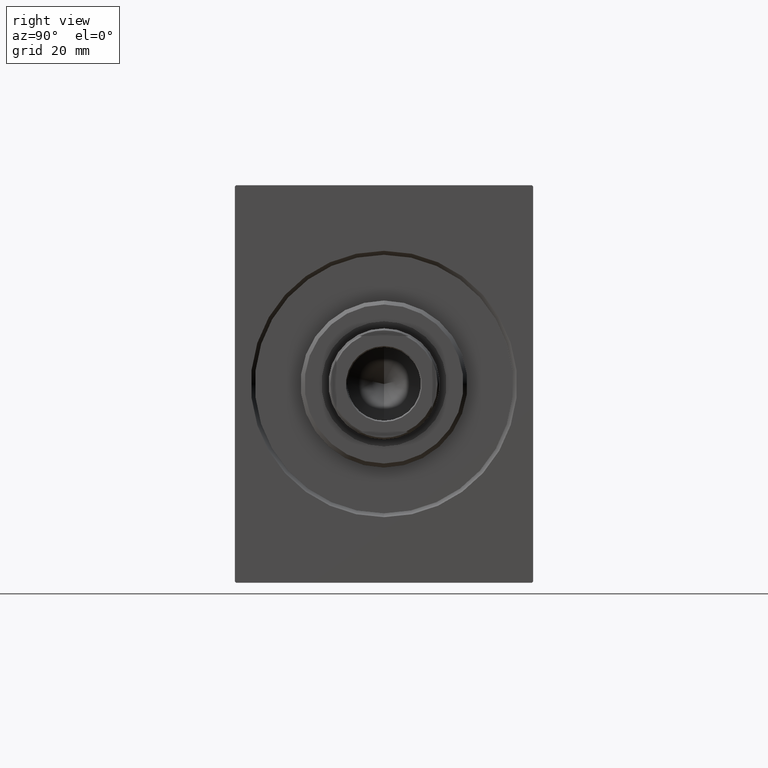
[diagram: clean part render]
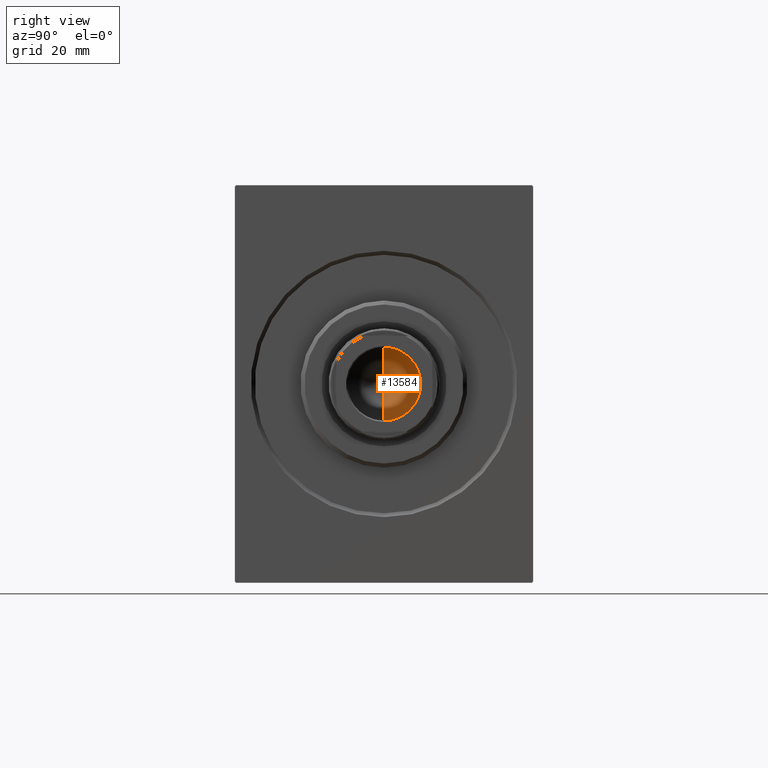
[diagram: same view with one face highlighted and labeled with its STEP entity id]
A machine part, right view. The second image highlights one B-rep face of the part: STEP entity #13584.
In plain terms, the highlighted conical surface has half-angle 59 deg.
Its self-contained STEP definition (entity closure, byte-faithful):
#750 = AXIS2_PLACEMENT_3D ( 'NONE', #30400, #27119, #10498 ) ;
#4031 = ORIENTED_EDGE ( 'NONE', *, *, #18368, .T. ) ;
#4475 = EDGE_LOOP ( 'NONE', ( #36015, #4031, #12839 ) ) ;
#8093 = DIRECTION ( 'NONE',  ( -0.000000000000000000, -0.000000000000000000, 1.000000000000000000 ) ) ;
#10323 = VERTEX_POINT ( 'NONE', #29848 ) ;
#10498 = DIRECTION ( 'NONE',  ( 1.000000000000000000, 0.000000000000000000, 0.000000000000000000 ) ) ;
#11708 = DIRECTION ( 'NONE',  ( 0.8571673007021124446, 0.000000000000000000, 0.5150380749100539335 ) ) ;
#12839 = ORIENTED_EDGE ( 'NONE', *, *, #28342, .T. ) ;
#13345 = FACE_OUTER_BOUND ( 'NONE', #4475, .T. ) ;
#13584 = ADVANCED_FACE ( 'NONE', ( #13345 ), #41965, .F. ) ;
#16125 = VECTOR ( 'NONE', #11708, 1000.000000000000000 ) ;
#16165 = CARTESIAN_POINT ( 'NONE',  ( -9.249999999999994671, 1.132798289211300909E-15, 96.00000000000000000 ) ) ;
#17320 = EDGE_CURVE ( 'NONE', #21441, #27632, #22196, .T. ) ;
#18368 = EDGE_CURVE ( 'NONE', #21441, #10323, #35536, .T. ) ;
#19336 = DIRECTION ( 'NONE',  ( -0.8571673007021124446, 1.049727191138618819E-16, 0.5150380749100539335 ) ) ;
#19968 = DIRECTION ( 'NONE',  ( 1.000000000000000000, 0.000000000000000000, 0.000000000000000000 ) ) ;
#21441 = VERTEX_POINT ( 'NONE', #22113 ) ;
#22113 = CARTESIAN_POINT ( 'NONE',  ( -6.793016015247754405E-15, 0.000000000000000000, 90.44203927399507847 ) ) ;
#22196 = LINE ( 'NONE', #35962, #37841 ) ;
#25052 = CARTESIAN_POINT ( 'NONE',  ( 9.249999999999994671, 0.000000000000000000, 96.00000000000000000 ) ) ;
#26764 = CARTESIAN_POINT ( 'NONE',  ( 0.000000000000000000, 0.000000000000000000, 96.00000000000000000 ) ) ;
#27119 = DIRECTION ( 'NONE',  ( -0.000000000000000000, -0.000000000000000000, 1.000000000000000000 ) ) ;
#27632 = VERTEX_POINT ( 'NONE', #16165 ) ;
#28342 = EDGE_CURVE ( 'NONE', #10323, #27632, #32421, .T. ) ;
#29848 = CARTESIAN_POINT ( 'NONE',  ( 9.249999999999994671, 0.000000000000000000, 96.00000000000000000 ) ) ;
#30400 = CARTESIAN_POINT ( 'NONE',  ( 0.000000000000000000, 0.000000000000000000, 96.00000000000000000 ) ) ;
#32421 = CIRCLE ( 'NONE', #34504, 9.249999999999994671 ) ;
#34504 = AXIS2_PLACEMENT_3D ( 'NONE', #26764, #8093, #19968 ) ;
#35536 = LINE ( 'NONE', #25052, #16125 ) ;
#35962 = CARTESIAN_POINT ( 'NONE',  ( -9.249999999999994671, 1.132798289211300909E-15, 96.00000000000000000 ) ) ;
#36015 = ORIENTED_EDGE ( 'NONE', *, *, #17320, .F. ) ;
#37841 = VECTOR ( 'NONE', #19336, 1000.000000000000000 ) ;
#41965 = CONICAL_SURFACE ( 'NONE', #750, 9.249999999999994671, 1.029744258676654756 ) ;